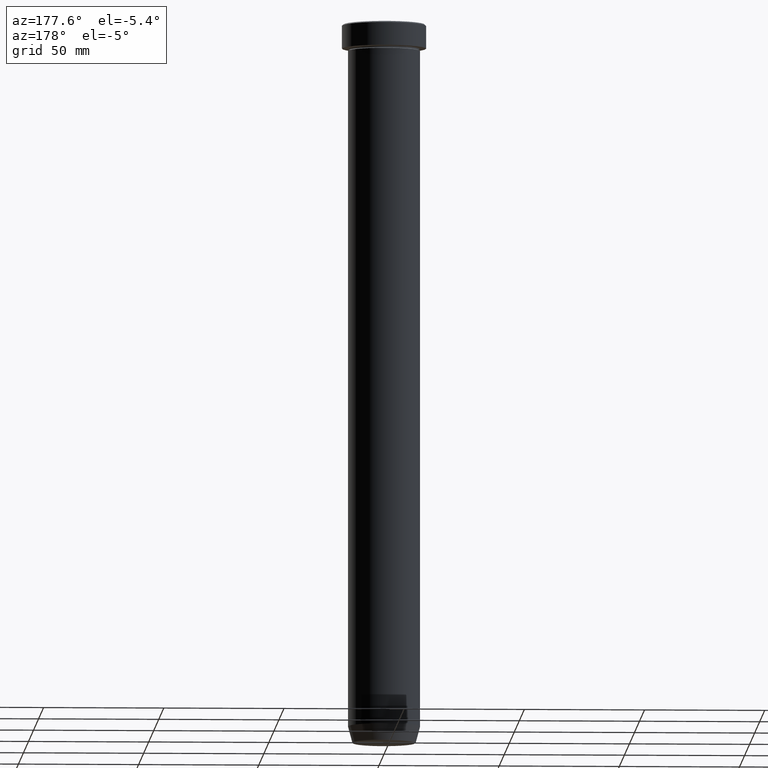
[diagram: clean part render]
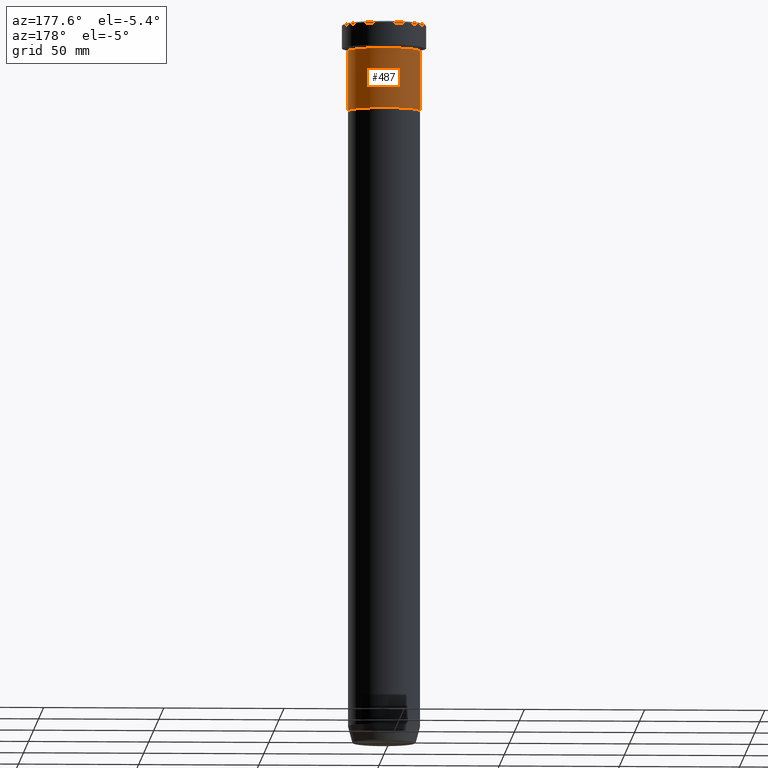
[diagram: same view with one face highlighted and labeled with its STEP entity id]
A machine part, auxiliary view. The second image highlights one B-rep face of the part: STEP entity #487.
In plain terms, the highlighted cylindrical surface (edge-blend (fillet) strip) has radius 15 mm, axis along (-0, -0, 1).
Its self-contained STEP definition (entity closure, byte-faithful):
#18 = CARTESIAN_POINT ( 'NONE',  ( 0.000000000000000000, 0.000000000000000000, -36.00000000000000000 ) ) ;
#19 = VECTOR ( 'NONE', #302, 1000.000000000000000 ) ;
#37 = CARTESIAN_POINT ( 'NONE',  ( 15.00000000000000000, 0.000000000000000000, -36.00000000000000000 ) ) ;
#38 = AXIS2_PLACEMENT_3D ( 'NONE', #18, #197, #388 ) ;
#45 = EDGE_CURVE ( 'NONE', #64, #385, #344, .T. ) ;
#55 = EDGE_LOOP ( 'NONE', ( #386, #486, #571, #330 ) ) ;
#64 = VERTEX_POINT ( 'NONE', #37 ) ;
#80 = CARTESIAN_POINT ( 'NONE',  ( 0.000000000000000000, 0.000000000000000000, -11.00000000000000000 ) ) ;
#81 = AXIS2_PLACEMENT_3D ( 'NONE', #106, #298, #204 ) ;
#106 = CARTESIAN_POINT ( 'NONE',  ( 0.000000000000000000, 0.000000000000000000, 0.000000000000000000 ) ) ;
#116 = FACE_OUTER_BOUND ( 'NONE', #55, .T. ) ;
#125 = CARTESIAN_POINT ( 'NONE',  ( -15.00000000000000000, 1.836970198721029589E-15, 0.000000000000000000 ) ) ;
#131 = EDGE_CURVE ( 'NONE', #233, #231, #145, .T. ) ;
#136 = CARTESIAN_POINT ( 'NONE',  ( -15.00000000000000000, 1.836970198721029589E-15, -11.00000000000000000 ) ) ;
#142 = EDGE_CURVE ( 'NONE', #385, #231, #211, .T. ) ;
#145 = CIRCLE ( 'NONE', #227, 15.00000000000000000 ) ;
#180 = VECTOR ( 'NONE', #472, 1000.000000000000000 ) ;
#197 = DIRECTION ( 'NONE',  ( -0.000000000000000000, -0.000000000000000000, 1.000000000000000000 ) ) ;
#204 = DIRECTION ( 'NONE',  ( 1.000000000000000000, 0.000000000000000000, 0.000000000000000000 ) ) ;
#211 = LINE ( 'NONE', #125, #19 ) ;
#226 = CARTESIAN_POINT ( 'NONE',  ( 15.00000000000000000, 0.000000000000000000, 0.000000000000000000 ) ) ;
#227 = AXIS2_PLACEMENT_3D ( 'NONE', #80, #597, #446 ) ;
#231 = VERTEX_POINT ( 'NONE', #136 ) ;
#233 = VERTEX_POINT ( 'NONE', #369 ) ;
#279 = LINE ( 'NONE', #226, #180 ) ;
#298 = DIRECTION ( 'NONE',  ( -0.000000000000000000, -0.000000000000000000, 1.000000000000000000 ) ) ;
#302 = DIRECTION ( 'NONE',  ( -0.000000000000000000, -0.000000000000000000, 1.000000000000000000 ) ) ;
#330 = ORIENTED_EDGE ( 'NONE', *, *, #348, .F. ) ;
#344 = CIRCLE ( 'NONE', #38, 15.00000000000000000 ) ;
#348 = EDGE_CURVE ( 'NONE', #64, #233, #279, .T. ) ;
#352 = CARTESIAN_POINT ( 'NONE',  ( -15.00000000000000000, 1.836970198721029589E-15, -36.00000000000000000 ) ) ;
#369 = CARTESIAN_POINT ( 'NONE',  ( 15.00000000000000000, 0.000000000000000000, -11.00000000000000000 ) ) ;
#385 = VERTEX_POINT ( 'NONE', #352 ) ;
#386 = ORIENTED_EDGE ( 'NONE', *, *, #45, .T. ) ;
#388 = DIRECTION ( 'NONE',  ( 1.000000000000000000, 0.000000000000000000, 0.000000000000000000 ) ) ;
#446 = DIRECTION ( 'NONE',  ( 1.000000000000000000, 0.000000000000000000, 0.000000000000000000 ) ) ;
#472 = DIRECTION ( 'NONE',  ( -0.000000000000000000, -0.000000000000000000, 1.000000000000000000 ) ) ;
#486 = ORIENTED_EDGE ( 'NONE', *, *, #142, .T. ) ;
#487 = ADVANCED_FACE ( 'NONE', ( #116 ), #570, .T. ) ;
#570 = CYLINDRICAL_SURFACE ( 'NONE', #81, 15.00000000000000000 ) ;
#571 = ORIENTED_EDGE ( 'NONE', *, *, #131, .F. ) ;
#597 = DIRECTION ( 'NONE',  ( -0.000000000000000000, -0.000000000000000000, 1.000000000000000000 ) ) ;